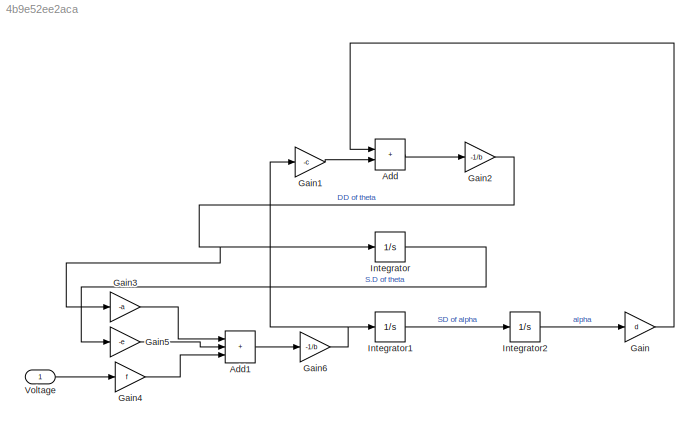
MODEL slx_4b9e52ee2aca
KIND model
CONFIG AbsTol = auto
CONFIG EnableMultiTasking = off
CONFIG FixedStep = auto
CONFIG InitFcn = a = Jeq + m*r^2 + ng*(Kg^2)*Jm;\nb = m*L*r;\nc = (4/3)m(L^2);\nd = m*g*L;\nf = (nm*ng*Kt*Kg)/R;\n\nJeq = 1.84e-6;\nm = 0.0270;\nr = 0.0826;\nKg = 1;\nJm = 1.80e-4;\nng = 1;\nnm = 0.69;\nL = 0.0955;\ng = 9.8;\nKt = 0.0344;\nR = 8.7;
CONFIG MaxStep = auto
CONFIG MinStep = auto
CONFIG RelTol = 1e-3
CONFIG SampleTimeConstraint = Unconstrained
CONFIG SolverName = VariableStepAuto
CONFIG StartTime = 0.0
CONFIG StopTime = 10.0
BLOCK [Sum] Add
  IconShape = rectangular
  Ports = [2, 1]
BLOCK [Sum] Add1
  IconShape = rectangular
  Inputs = +++
  Ports = [3, 1]
BLOCK [Gain] Gain
  Gain = d
BLOCK [Gain] Gain1
  Gain = -c
BLOCK [Gain] Gain2
  Gain = -1/b
BLOCK [Gain] Gain3
  Gain = -a
BLOCK [Gain] Gain4
  Gain = f
BLOCK [Gain] Gain5
  Gain = -e
BLOCK [Gain] Gain6
  Gain = -1/b
BLOCK [Integrator] Integrator
  Ports = [1, 1]
BLOCK [Integrator] Integrator1
  Ports = [1, 1]
BLOCK [Integrator] Integrator2
  Ports = [1, 1]
BLOCK [Inport] Voltage
LINE Add1:1 -> Gain6:1
LINE Add:1 -> Gain2:1
LINE Gain1:1 -> Add:2
NET Gain2:1 -> Gain3:1, Integrator:1
LINE Gain3:1 -> Add1:1
LINE Gain4:1 -> Add1:3
LINE Gain5:1 -> Add1:2
NET Gain6:1 -> Gain1:1, Integrator1:1
LINE Gain:1 -> Add:1
LINE Integrator1:1 -> Integrator2:1
LINE Integrator2:1 -> Gain:1
LINE Integrator:1 -> Gain5:1
LINE Voltage:1 -> Gain4:1
note: NET lines group one-source signal fan-out (src -> all destinations, sorted); 1:1 wires keep LINE
